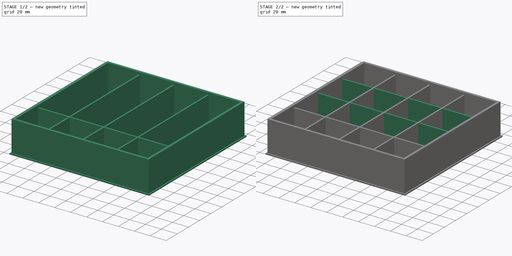
[diagram: build sequence overview — one tinted view per stage of 2, left to right]
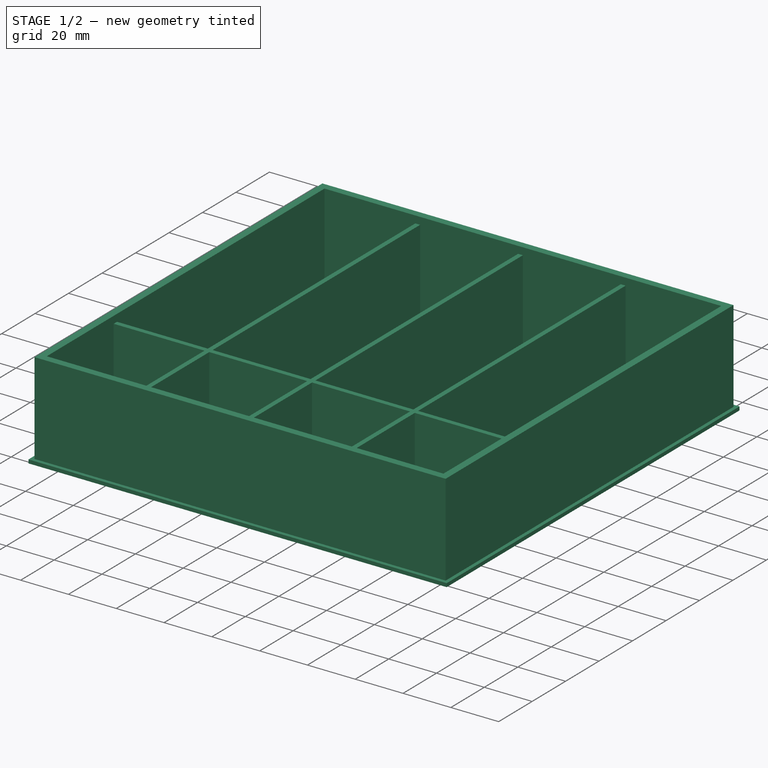
[diagram: stage 1 of 2 — iso view after this stage's code; geometry added in this stage tinted green]
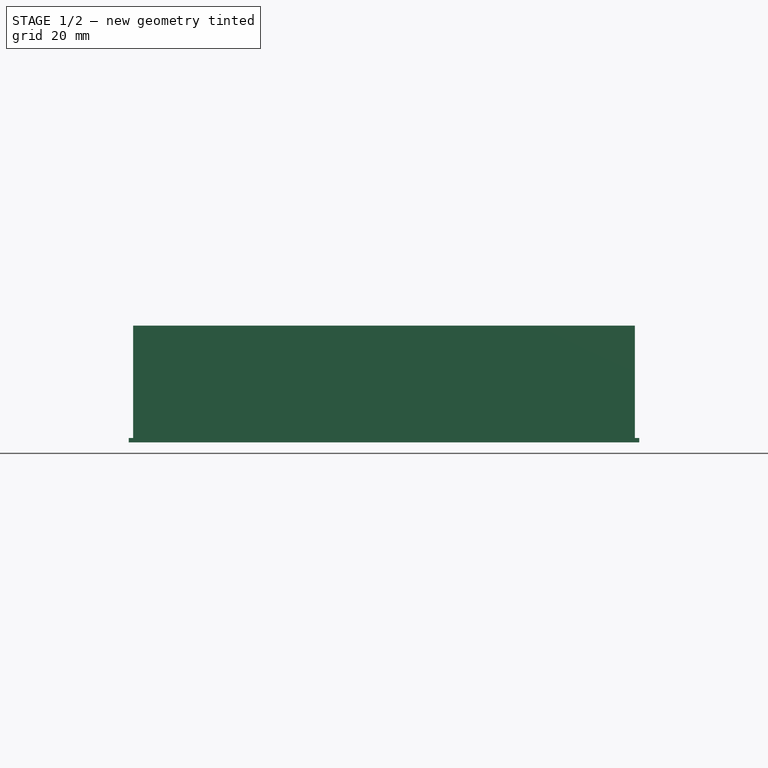
[diagram: stage 1 of 2 — front view after this stage's code; geometry added in this stage tinted green]
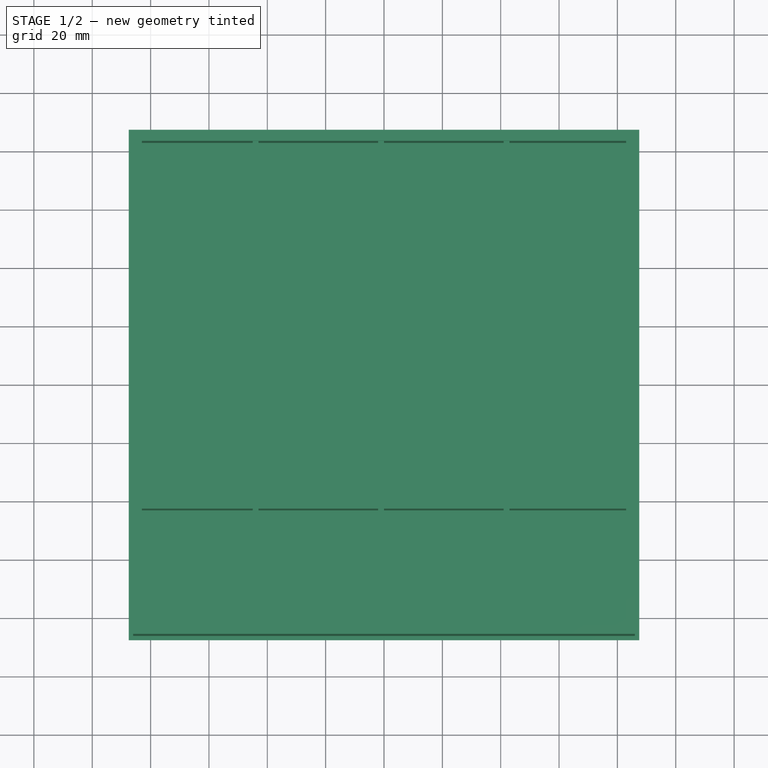
[diagram: stage 1 of 2 — top view after this stage's code; geometry added in this stage tinted green]
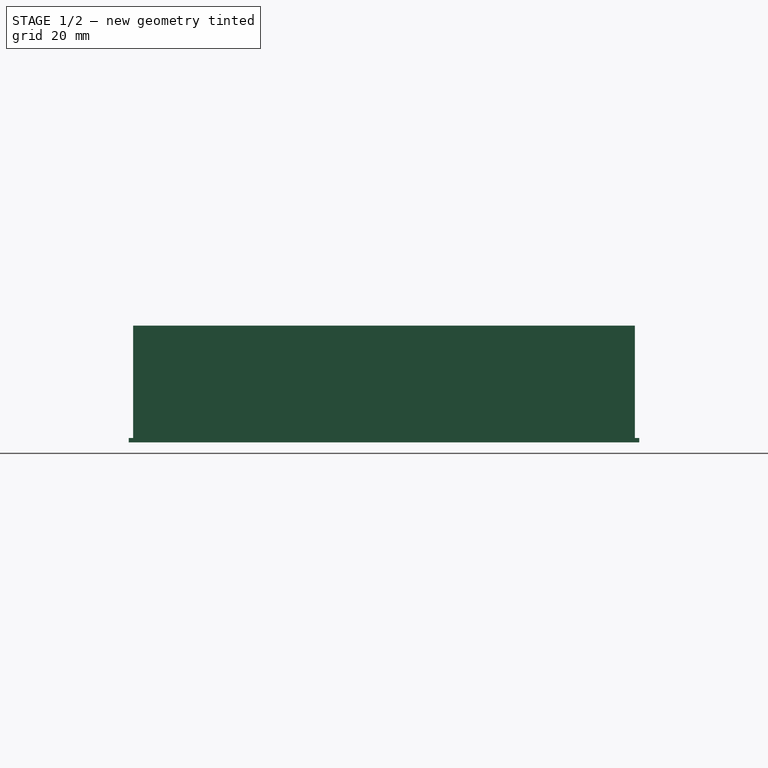
[diagram: stage 1 of 2 — right view after this stage's code; geometry added in this stage tinted green]
FCSTD DOCUMENT  (FreeCAD 0.20R29410 (Git))
Label: pool_balls_box
License: All rights reserved
LicenseURL: http://en.wikipedia.org/wiki/All_rights_reserved
objects: Sketcher::SketchObject×4, PartDesign::Pad×4, PartDesign::LinearPattern×2, PartDesign::Body×1, PartDesign::FeatureBase×1
note: 16 computed .brp shape members not serialized (recipe doc carries the construction recipe); baked Part::Feature solids carry a one-line shape summary decoded from their .brp

FEATURE [Sketcher::SketchObject] Sketch
  FullyConstrained = true
  MapMode = 5
  Support = -> [XY_Plane]
  sketch-geometry (5):
    g0: LineSegment StartX=-87.5 StartY=87.5 StartZ=0 EndX=-87.5 EndY=-87.5 EndZ=0
    g1: LineSegment StartX=-87.5 StartY=-87.5 StartZ=0 EndX=87.5 EndY=-87.5 EndZ=0
    g2: LineSegment StartX=87.5 StartY=-87.5 StartZ=0 EndX=87.5 EndY=87.5 EndZ=0
    g3: LineSegment StartX=87.5 StartY=87.5 StartZ=0 EndX=-87.5 EndY=87.5 EndZ=0
    g4: GeomPoint X=0 Y=0 Z=0
  constraints (12):
    c: Coincident(g0,g1)
    c: Coincident(g1,g2)
    c: Coincident(g2,g3)
    c: Coincident(g3,g0)
    c: Horizontal(g1)
    c: Horizontal(g3)
    c: Vertical(g0)
    c: Vertical(g2)
    c: Symmetric(g1,g0,g4)
    c: Coincident(g4,g-1)
    c: Distance(g3) = 175
    c: Distance(g2) = 175
FEATURE [Sketcher::SketchObject] Sketch001
  FullyConstrained = true
  MapMode = 5
  Support = -> [XY_Plane]
  sketch-geometry (10):
    g0: LineSegment StartX=-86 StartY=86 StartZ=0 EndX=-86 EndY=-86 EndZ=0
    g1: LineSegment StartX=-86 StartY=-86 StartZ=0 EndX=86 EndY=-86 EndZ=0
    g2: LineSegment StartX=86 StartY=-86 StartZ=0 EndX=86 EndY=86 EndZ=0
    g3: LineSegment StartX=86 StartY=86 StartZ=0 EndX=-86 EndY=86 EndZ=0
    g4: GeomPoint X=0 Y=0 Z=0
    g5: LineSegment StartX=-83 StartY=83 StartZ=0 EndX=-83 EndY=-83 EndZ=0
    g6: LineSegment StartX=-83 StartY=-83 StartZ=0 EndX=83 EndY=-83 EndZ=0
    g7: LineSegment StartX=83 StartY=-83 StartZ=0 EndX=83 EndY=83 EndZ=0
    g8: LineSegment StartX=83 StartY=83 StartZ=0 EndX=-83 EndY=83 EndZ=0
    g9: GeomPoint X=0 Y=0 Z=0
  constraints (24):
    c: Coincident(g0,g1)
    c: Coincident(g1,g2)
    c: Coincident(g2,g3)
    c: Coincident(g3,g0)
    c: Horizontal(g1)
    c: Horizontal(g3)
    c: Vertical(g0)
    c: Vertical(g2)
    c: Symmetric(g1,g0,g4)
    c: Coincident(g4,g-1)
    c: Coincident(g5,g6)
    c: Coincident(g6,g7)
    c: Coincident(g7,g8)
    c: Coincident(g8,g5)
    c: Horizontal(g6)
    c: Horizontal(g8)
    c: Vertical(g5)
    c: Vertical(g7)
    c: Symmetric(g6,g5,g9)
    c: Coincident(g9,g4)
    c: Distance(g3) = 172
    c: Distance(g2) = 172
    c: Distance(g8) = 166
    c: Distance(g7) = 166
FEATURE [Sketcher::SketchObject] Sketch002
  FullyConstrained = true
  MapMode = 5
  Placement = pos=(0,0,0) rot=(1,0,0;1.5708rad)
  Support = -> [XZ_Plane]
  sketch-geometry (4):
    g0: LineSegment StartX=-43 StartY=37 StartZ=0 EndX=-45 EndY=37 EndZ=0
    g1: LineSegment StartX=-45 StartY=37 StartZ=0 EndX=-45 EndY=0 EndZ=0
    g2: LineSegment StartX=-45 StartY=0 StartZ=0 EndX=-43 EndY=0 EndZ=0
    g3: LineSegment StartX=-43 StartY=0 StartZ=0 EndX=-43 EndY=37 EndZ=0
  constraints (12):
    c: Coincident(g0,g1)
    c: Coincident(g1,g2)
    c: Coincident(g2,g3)
    c: Coincident(g3,g0)
    c: Horizontal(g0)
    c: Horizontal(g2)
    c: Vertical(g1)
    c: Vertical(g3)
    c: DistanceX(g-2,g2) = -43
    c: Distance(g0) = 2
    c: Distance(g1) = 37
    c: DistanceY(g-1,g0) = 37
FEATURE [Sketcher::SketchObject] Sketch003
  FullyConstrained = true
  MapMode = 5
  Placement = pos=(0,0,0) rot=(0.57735,0.57735,0.57735;2.0944rad)
  Support = -> [YZ_Plane]
  sketch-geometry (4):
    g0: LineSegment StartX=-43 StartY=37 StartZ=0 EndX=-41 EndY=37 EndZ=0
    g1: LineSegment StartX=-41 StartY=37 StartZ=0 EndX=-41 EndY=0 EndZ=0
    g2: LineSegment StartX=-41 StartY=0 StartZ=0 EndX=-43 EndY=0 EndZ=0
    g3: LineSegment StartX=-43 StartY=0 StartZ=0 EndX=-43 EndY=37 EndZ=0
  constraints (12):
    c: Coincident(g0,g1)
    c: Coincident(g1,g2)
    c: Coincident(g2,g3)
    c: Coincident(g3,g0)
    c: Horizontal(g0)
    c: Horizontal(g2)
    c: Vertical(g1)
    c: Vertical(g3)
    c: Distance(g0) = 2
    c: DistanceX(g-2,g2) = -43
    c: DistanceY(g-1,g0) = 37
    c: Distance(g1) = 37
FEATURE [PartDesign::Body] Body
  BaseFeature = -> LinearPattern
  Group = -> [BaseFeature,Sketch,Pad,Sketch001,Pad001,Sketch002,Pad002,Sketch003,Pad003,LinearPattern001]
  Origin = -> Origin
  Tip = -> LinearPattern001
FEATURE [PartDesign::Pad] Pad
  BaseFeature = -> BaseFeature
  Direction = (0,0,1)
  Length = 1.5
  Length2 = 10
  Profile = -> Sketch
  ReferenceAxis = -> Sketch [N_Axis]
  Type = 0
FEATURE [PartDesign::Pad] Pad001
  BaseFeature = -> Pad
  Direction = (0,0,1)
  Length = 40
  Length2 = 10
  Profile = -> Sketch001
  ReferenceAxis = -> Sketch001 [N_Axis]
  Type = 0
FEATURE [PartDesign::Pad] Pad002
  BaseFeature = -> Pad001
  Direction = (0,-1,-2e-16)
  Length = 166
  Length2 = 10
  Midplane = true
  Profile = -> Sketch002
  ReferenceAxis = -> Sketch002 [N_Axis]
  Type = 0
FEATURE [PartDesign::LinearPattern] LinearPattern
  BaseFeature = -> Pad002
  Direction = -> Sketch002 [H_Axis]
  Length = 86
  Occurrences = 3
  Originals = -> [Pad002]
FEATURE [PartDesign::Pad] Pad003
  BaseFeature = -> Pad002
  Direction = (1,-2e-16,3e-16)
  Length = 166
  Length2 = 10
  Midplane = true
  Profile = -> Sketch003
  ReferenceAxis = -> Sketch003 [N_Axis]
  Type = 0
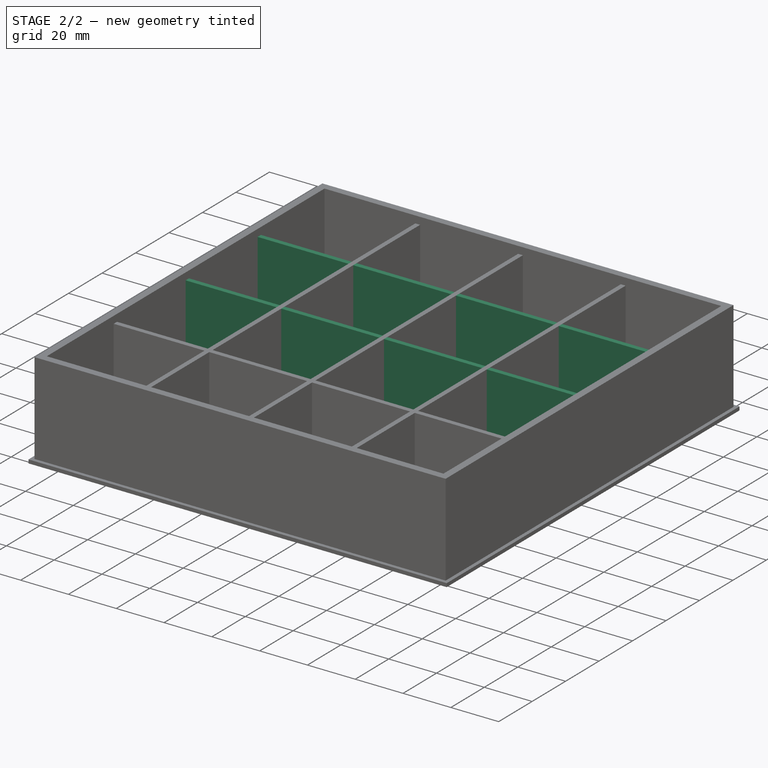
[diagram: stage 2 of 2 — iso view after this stage's code; geometry added in this stage tinted green]
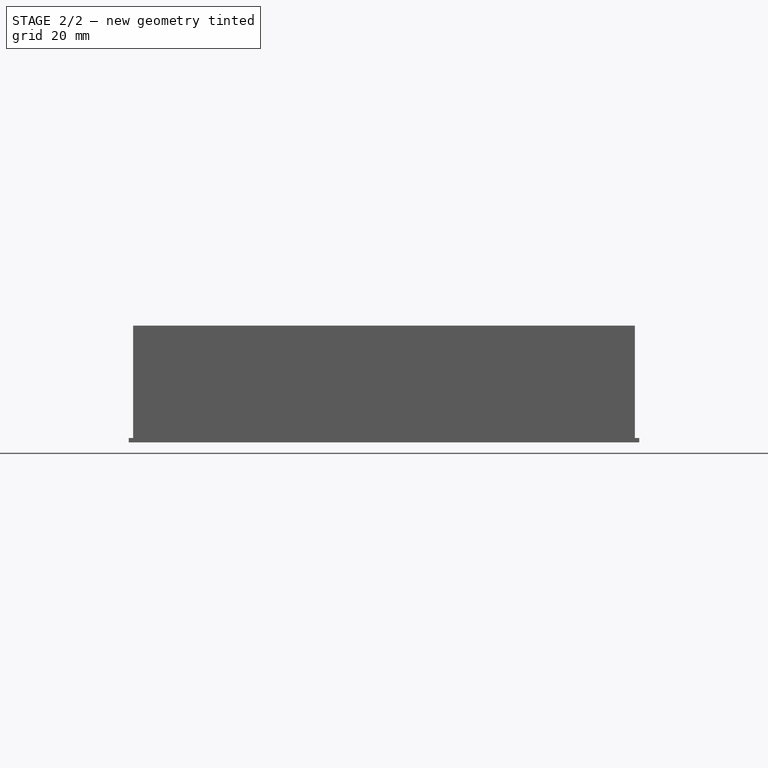
[diagram: stage 2 of 2 — front view after this stage's code; geometry added in this stage tinted green]
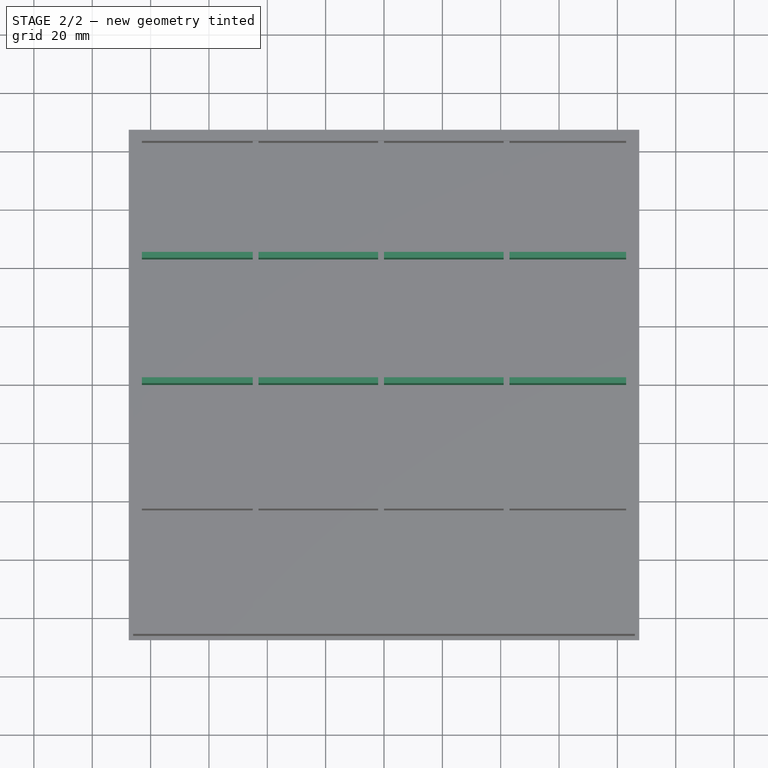
[diagram: stage 2 of 2 — top view after this stage's code; geometry added in this stage tinted green]
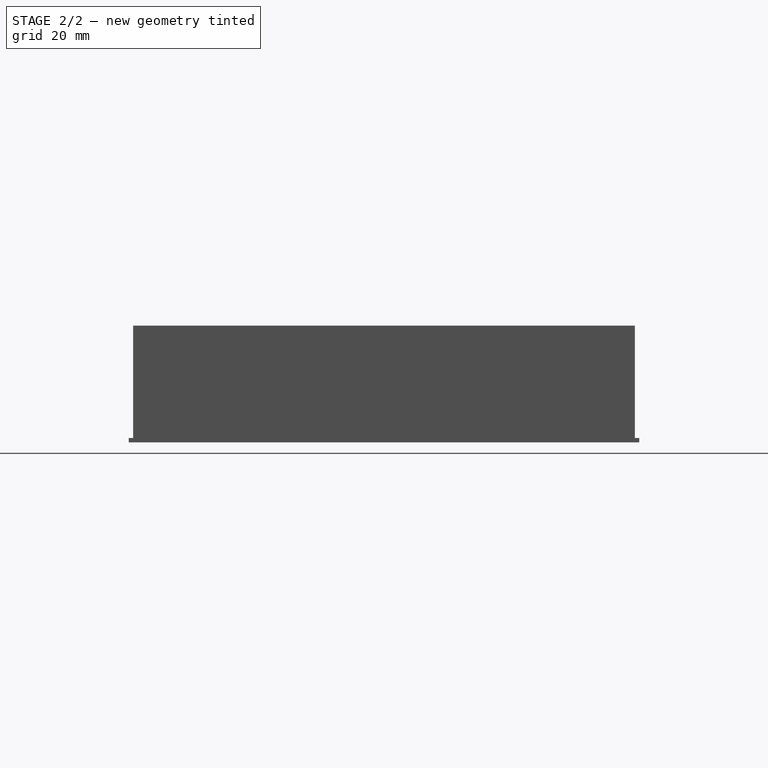
[diagram: stage 2 of 2 — right view after this stage's code; geometry added in this stage tinted green]
FEATURE [PartDesign::LinearPattern] LinearPattern001
  BaseFeature = -> Pad003
  Direction = -> Sketch003 [H_Axis]
  Length = 86
  Occurrences = 3
  Originals = -> [Pad003]
FEATURE [PartDesign::FeatureBase] BaseFeature
  BaseFeature = -> LinearPattern
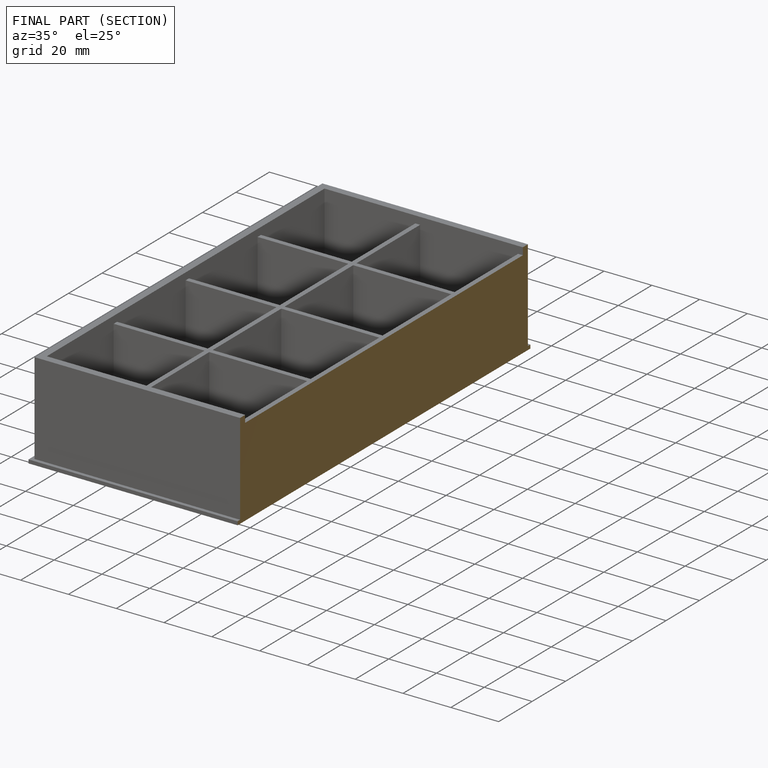
[diagram: finished part — half-section view (interior)]
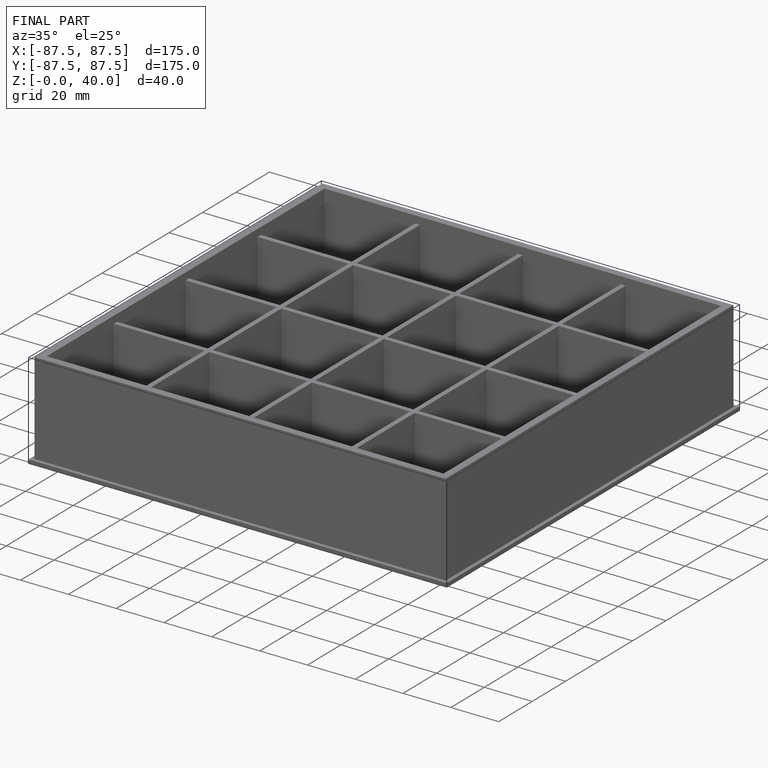
[diagram: finished part — iso view with bounding-box wireframe]
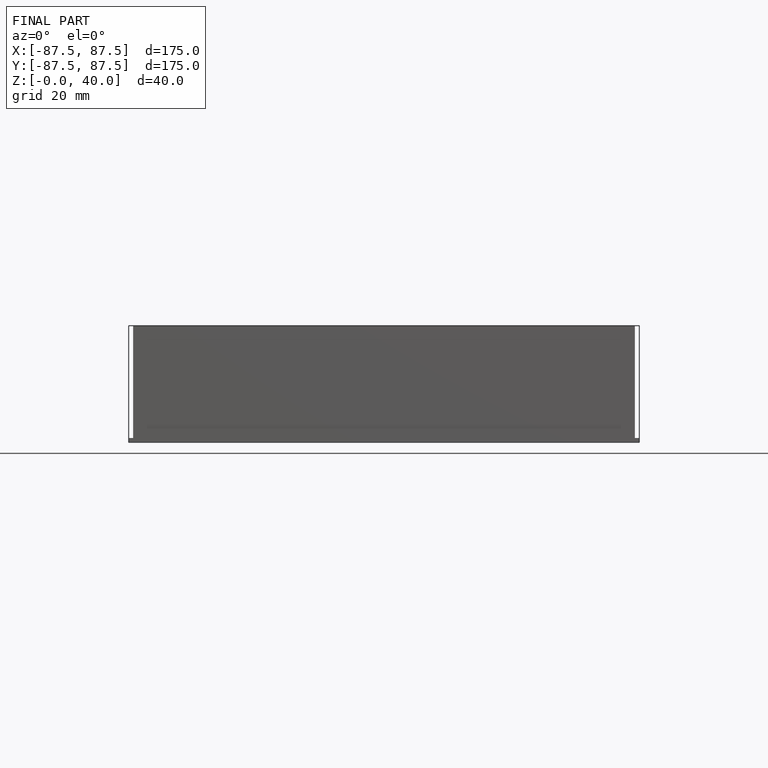
[diagram: finished part — front view with bounding-box wireframe]
